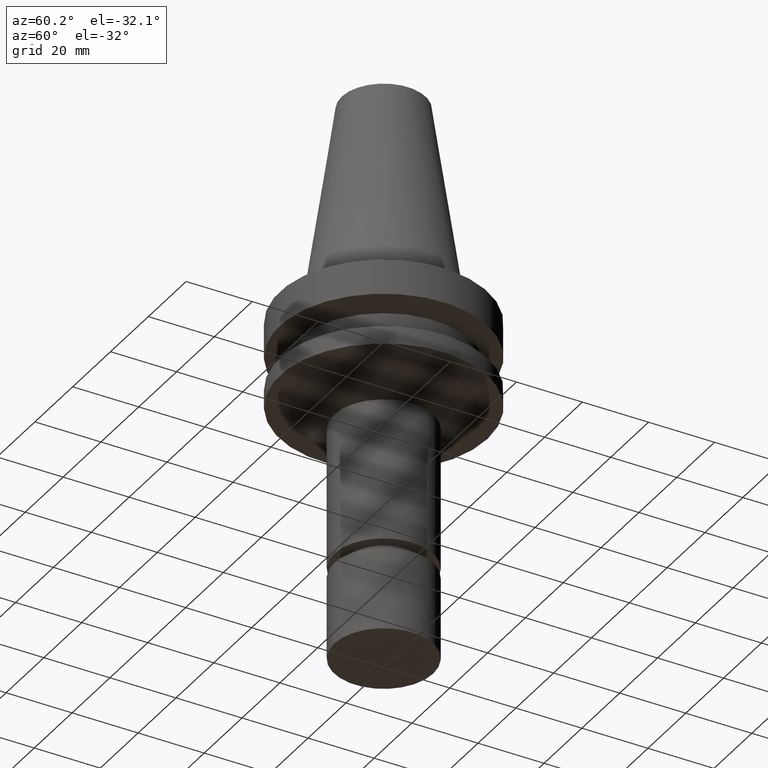
[diagram: clean part render]
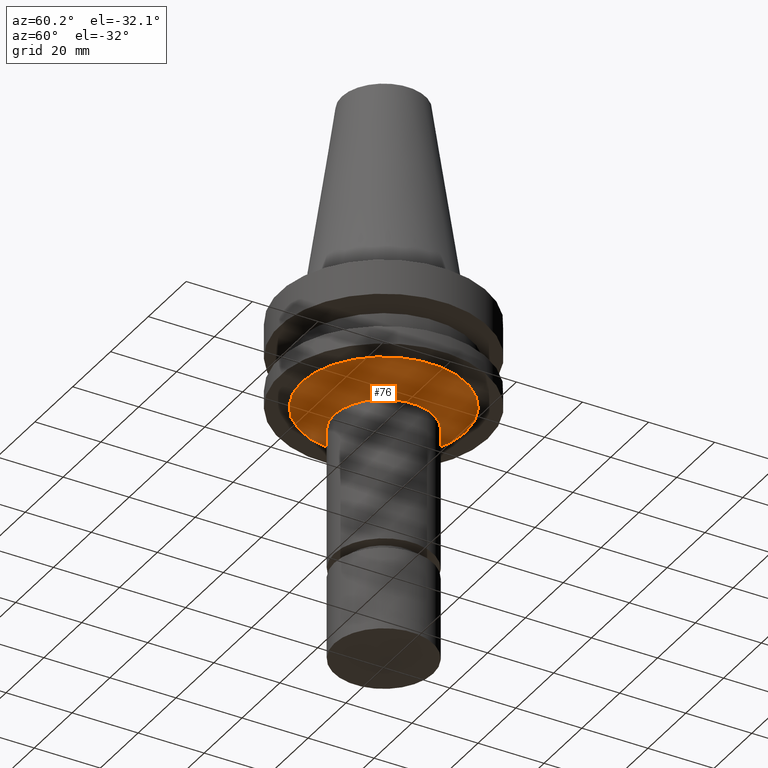
[diagram: same view with one face highlighted and labeled with its STEP entity id]
A machine part, auxiliary view. The second image highlights one B-rep face of the part: STEP entity #76.
In plain terms, the highlighted conical surface has half-angle 54.789 deg.
Its self-contained STEP definition (entity closure, byte-faithful):
#76=ADVANCED_FACE('Unnamed[1]',(#202,#203),#204,.T.);
#93=EDGE_CURVE('Unnamed[1]',#229,#229,#230,.T.);
#108=EDGE_CURVE('Unnamed[1]',#251,#251,#252,.T.);
#202=FACE_BOUND('',#378,.T.);
#203=FACE_BOUND('',#379,.T.);
#204=CONICAL_SURFACE('',#380,19.9344124647526,0.956240827688237);
#229=VERTEX_POINT('',#412);
#230=CIRCLE('',#413,15.0000000000004);
#251=VERTEX_POINT('',#439);
#252=CIRCLE('',#440,24.8688249295048);
#378=EDGE_LOOP('',(#581));
#379=EDGE_LOOP('',(#582));
#380=AXIS2_PLACEMENT_3D('',#583,#584,#585);
#412=CARTESIAN_POINT('',(2.07973442388956E-015,15.0000000000004,-33.9646406676204));
#413=AXIS2_PLACEMENT_3D('',#612,#613,#614);
#439=CARTESIAN_POINT('',(1.65327317884891E-015,24.8688249295049,-26.9999999999998));
#440=AXIS2_PLACEMENT_3D('',#634,#635,#636);
#581=ORIENTED_EDGE('',*,*,#93,.F.);
#582=ORIENTED_EDGE('',*,*,#108,.T.);
#583=CARTESIAN_POINT('',(1.86650380136924E-015,7.40711975281859E-014,-30.4823203338101));
#584=DIRECTION('',(-6.12323399573677E-017,3.19681415020243E-017,1.0));
#585=DIRECTION('',(-2.86966862251183E-033,1.0,-3.19681415020243E-017));
#612=CARTESIAN_POINT('',(2.07973442388956E-015,7.39598742189992E-014,-33.9646406676204));
#613=DIRECTION('',(6.12323399573677E-017,-3.19681415020243E-017,-1.0));
#614=DIRECTION('',(-2.86966862251183E-033,1.0,-3.19681415020243E-017));
#634=CARTESIAN_POINT('',(1.65327317884891E-015,7.41825208373725E-014,-26.9999999999998));
#635=DIRECTION('',(6.12323399573677E-017,-3.19681415020243E-017,-1.0));
#636=DIRECTION('',(-2.86966862251183E-033,1.0,-3.19681415020244E-017));